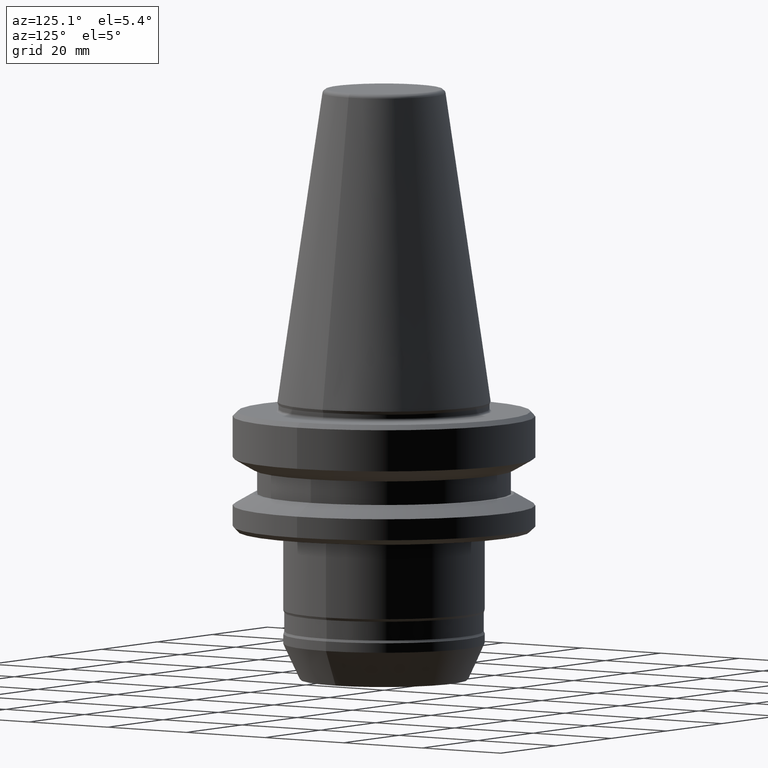
[diagram: clean part render]
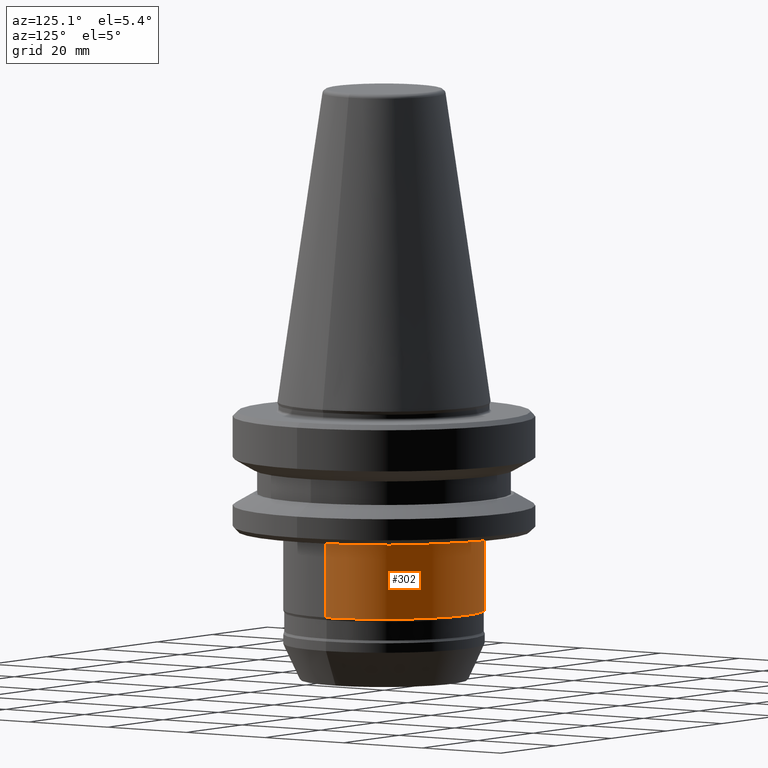
[diagram: same view with one face highlighted and labeled with its STEP entity id]
A machine part, auxiliary view. The second image highlights one B-rep face of the part: STEP entity #302.
In plain terms, the highlighted cylindrical surface (partial cylindrical patch) has radius 21 mm, axis along (-0, -0, 1).
Its self-contained STEP definition (entity closure, byte-faithful):
#97 = CIRCLE ( 'NONE', #562, 21.00000000002015500 ) ;
#109 = LINE ( 'NONE', #1200, #120 ) ;
#120 = VECTOR ( 'NONE', #583, 1000.000000000000000 ) ;
#129 = ORIENTED_EDGE ( 'NONE', *, *, #1034, .F. ) ;
#154 = EDGE_CURVE ( 'NONE', #864, #742, #538, .T. ) ;
#241 = LINE ( 'NONE', #470, #291 ) ;
#248 = CARTESIAN_POINT ( 'NONE',  ( 0.0000000000000000000, 0.0000000000000000000, -28.00000000009542200 ) ) ;
#291 = VECTOR ( 'NONE', #851, 1000.000000000000000 ) ;
#302 = ADVANCED_FACE ( 'NONE', ( #440 ), #389, .T. ) ;
#364 = DIRECTION ( 'NONE',  ( 1.000000000000000000, 0.0000000000000000000, 0.0000000000000000000 ) ) ;
#389 = CYLINDRICAL_SURFACE ( 'NONE', #676, 21.00000000002015500 ) ;
#440 = FACE_OUTER_BOUND ( 'NONE', #1203, .T. ) ;
#470 = CARTESIAN_POINT ( 'NONE',  ( -21.00000000002015500, 2.571758278211910000E-015, 112.2638323510917200 ) ) ;
#508 = CARTESIAN_POINT ( 'NONE',  ( -21.00000000002015500, 2.571758278211910000E-015, -28.00000000009542200 ) ) ;
#538 = CIRCLE ( 'NONE', #750, 21.00000000002015500 ) ;
#562 = AXIS2_PLACEMENT_3D ( 'NONE', #248, #949, #364 ) ;
#583 = DIRECTION ( 'NONE',  ( -0.0000000000000000000, -0.0000000000000000000, 1.000000000000000000 ) ) ;
#596 = EDGE_CURVE ( 'NONE', #742, #682, #241, .T. ) ;
#599 = EDGE_CURVE ( 'NONE', #1140, #682, #97, .T. ) ;
#672 = ORIENTED_EDGE ( 'NONE', *, *, #599, .F. ) ;
#676 = AXIS2_PLACEMENT_3D ( 'NONE', #1146, #696, #1049 ) ;
#682 = VERTEX_POINT ( 'NONE', #508 ) ;
#696 = DIRECTION ( 'NONE',  ( -0.0000000000000000000, -0.0000000000000000000, 1.000000000000000000 ) ) ;
#742 = VERTEX_POINT ( 'NONE', #982 ) ;
#750 = AXIS2_PLACEMENT_3D ( 'NONE', #1064, #898, #1069 ) ;
#851 = DIRECTION ( 'NONE',  ( -0.0000000000000000000, -0.0000000000000000000, 1.000000000000000000 ) ) ;
#864 = VERTEX_POINT ( 'NONE', #1100 ) ;
#898 = DIRECTION ( 'NONE',  ( -0.0000000000000000000, -0.0000000000000000000, 1.000000000000000000 ) ) ;
#932 = ORIENTED_EDGE ( 'NONE', *, *, #154, .T. ) ;
#949 = DIRECTION ( 'NONE',  ( -0.0000000000000000000, -0.0000000000000000000, 1.000000000000000000 ) ) ;
#966 = ORIENTED_EDGE ( 'NONE', *, *, #596, .T. ) ;
#982 = CARTESIAN_POINT ( 'NONE',  ( -21.00000000002015500, 2.571758278211910000E-015, -43.50422577833038000 ) ) ;
#1034 = EDGE_CURVE ( 'NONE', #864, #1140, #109, .T. ) ;
#1049 = DIRECTION ( 'NONE',  ( 1.000000000000000000, 0.0000000000000000000, 0.0000000000000000000 ) ) ;
#1064 = CARTESIAN_POINT ( 'NONE',  ( 0.0000000000000000000, 0.0000000000000000000, -43.50422577833038000 ) ) ;
#1069 = DIRECTION ( 'NONE',  ( 1.000000000000000000, 0.0000000000000000000, 0.0000000000000000000 ) ) ;
#1100 = CARTESIAN_POINT ( 'NONE',  ( 21.00000000002015500, 0.0000000000000000000, -43.50422577833038000 ) ) ;
#1132 = CARTESIAN_POINT ( 'NONE',  ( 21.00000000002015500, 0.0000000000000000000, -28.00000000009542200 ) ) ;
#1140 = VERTEX_POINT ( 'NONE', #1132 ) ;
#1146 = CARTESIAN_POINT ( 'NONE',  ( 0.0000000000000000000, 0.0000000000000000000, 112.2638323510917200 ) ) ;
#1200 = CARTESIAN_POINT ( 'NONE',  ( 21.00000000002015500, 0.0000000000000000000, 112.2638323510917200 ) ) ;
#1203 = EDGE_LOOP ( 'NONE', ( #932, #966, #672, #129 ) ) ;